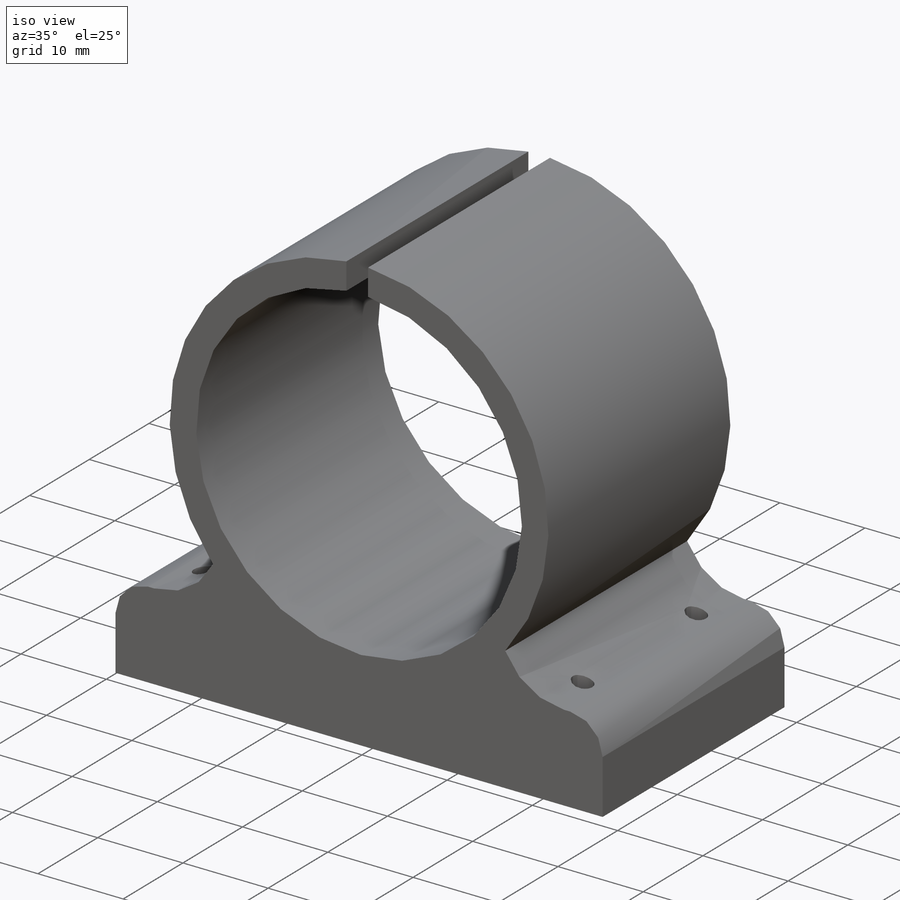
[diagram: iso view]
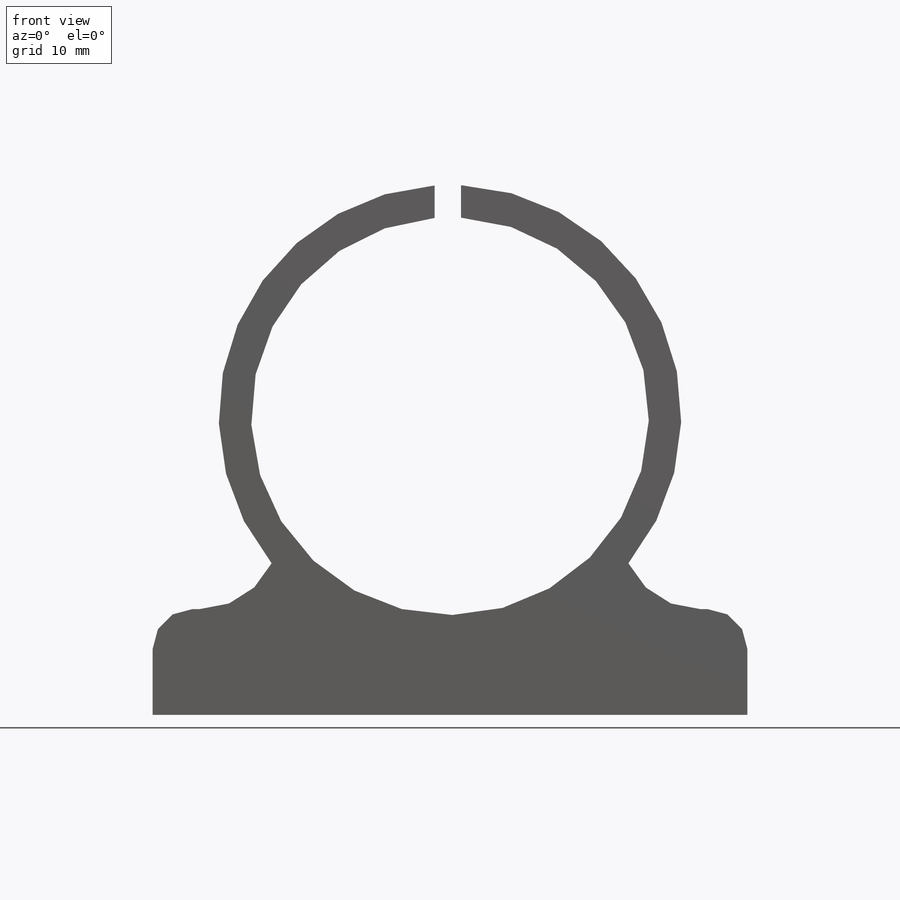
[diagram: front view]
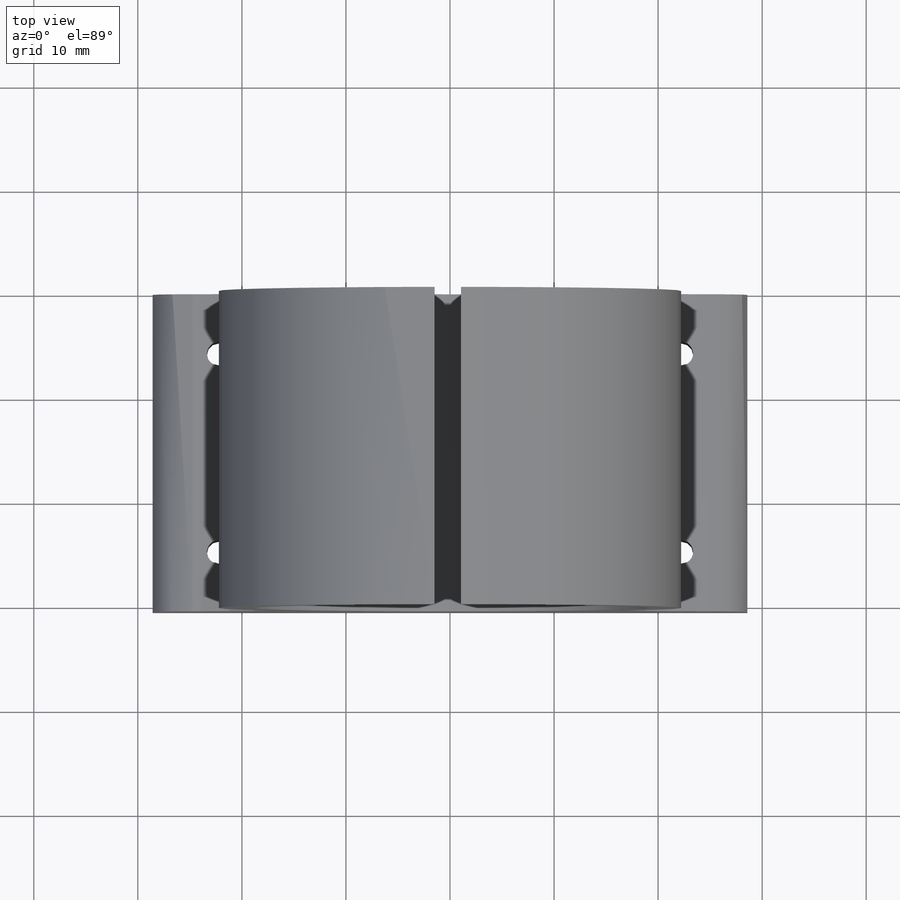
[diagram: top view]
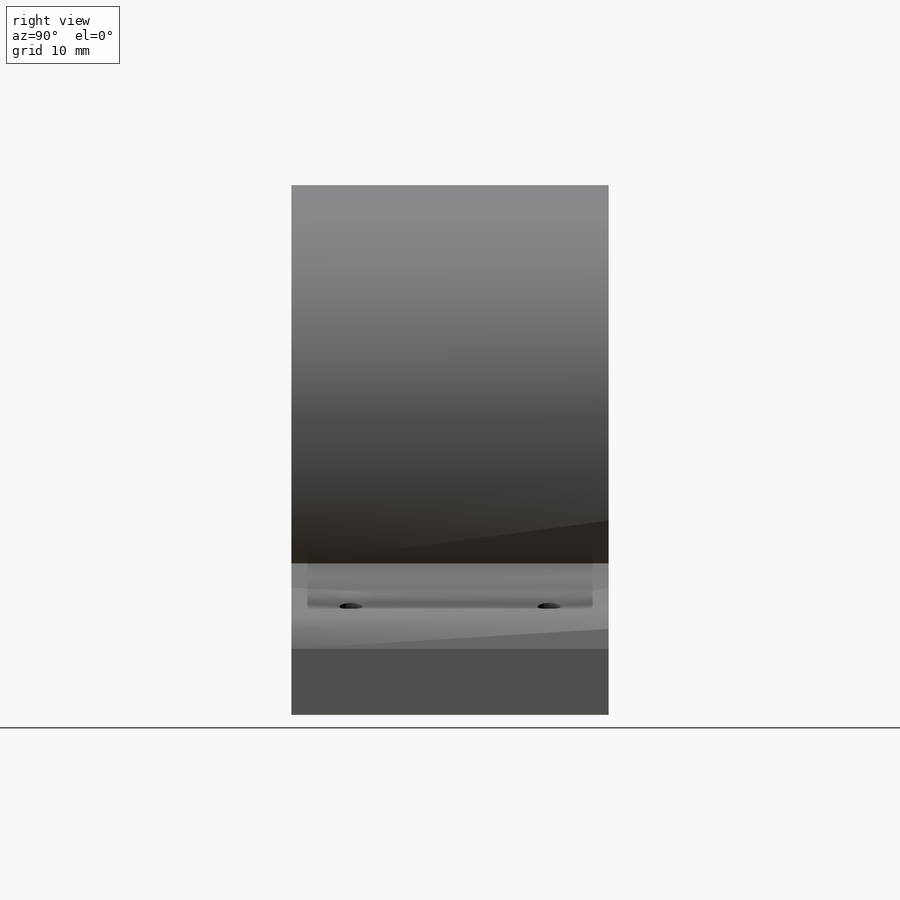
[diagram: right view]
SOLIDWORKS PART (.sldprt)
format: sldprt  version: not decoded by parser v0  size: 256,512 bytes
history: native  units: mm
features: sketch x2, fillet x2, material x1, extrude x1, cut_extrude x1 (+13 scaffold rows collapsed)
feature tree (20):
  scaffold x13  (default folders/planes/origin — collapsed)
  material  "Material <not specified>"
  sketch  "Sketch1"  dims[c1.D2=30.48mm c1.D4=44.45mm c2.D2=~19.108886mm c2.D1=57.15mm c2.D3=28.702mm c2.D5=10.16mm c2.D6=11.43mm c2.D7=2.54mm c2.D8=3.1242mm]
  extrude  "Boss-Extrude1"  Depth=30.48mm
  fillet  "Fillet1"  Radius=7.62mm
  fillet  "Fillet2"  Radius=3.81mm
  sketch  "Sketch2"  dims[c1.D4=2.286mm c1.D1=19.05mm c1.D2=44.45mm c1.0.10=5.715mm c2.D4=38.1mm]
  cut_extrude  "Cut-Extrude1"  [1 undecoded]
decode coverage: 5 of 6 modeling features carry decoded parameters
note: ~ marks probable driven/reference dimensions
note: 1 parameter value undecoded
note: suppression state not decoded; provenance and decode notes live in map.json
